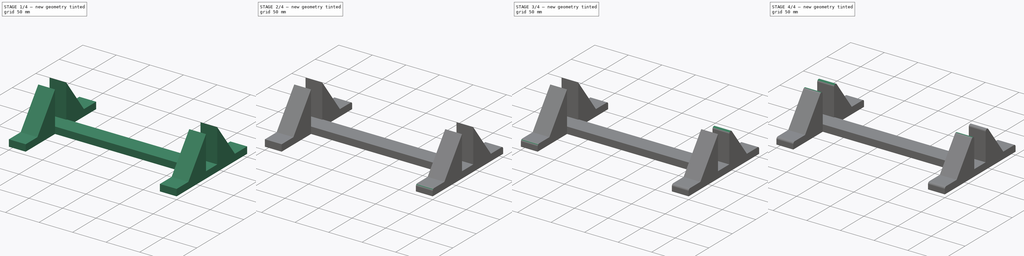
[diagram: build sequence overview — one tinted view per stage of 4, left to right]
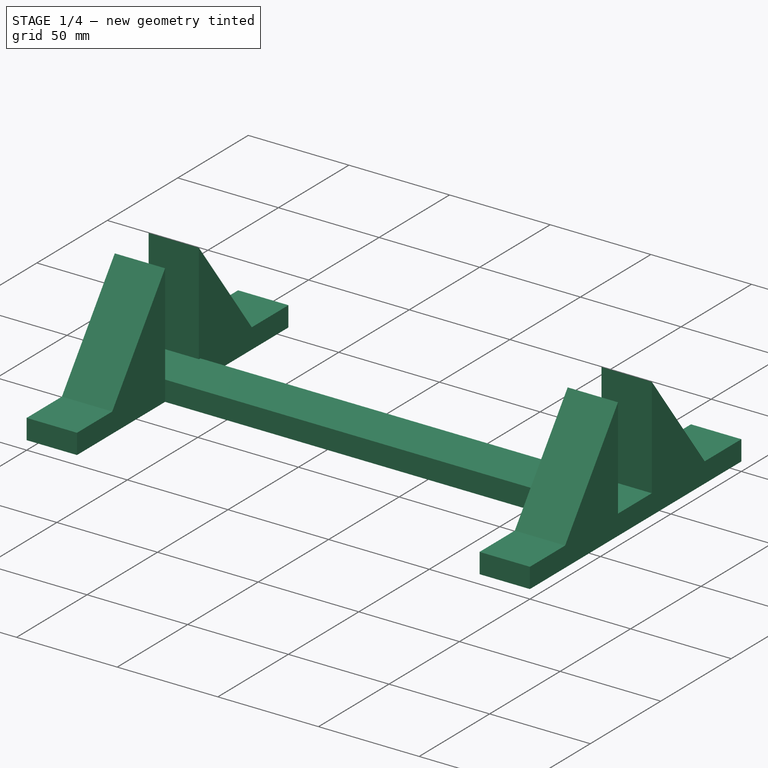
[diagram: stage 1 of 4 — iso view after this stage's code; geometry added in this stage tinted green]
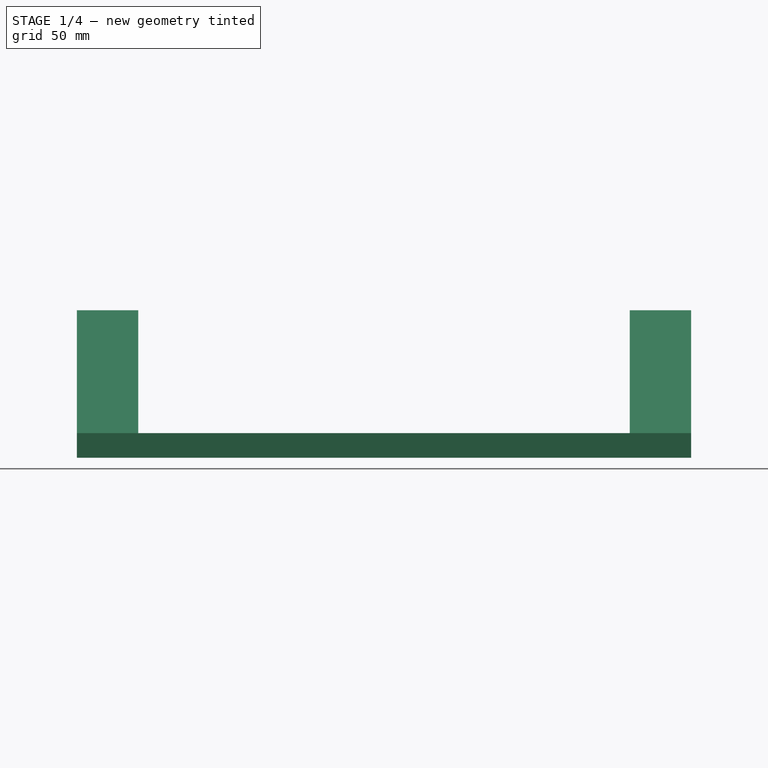
[diagram: stage 1 of 4 — front view after this stage's code; geometry added in this stage tinted green]
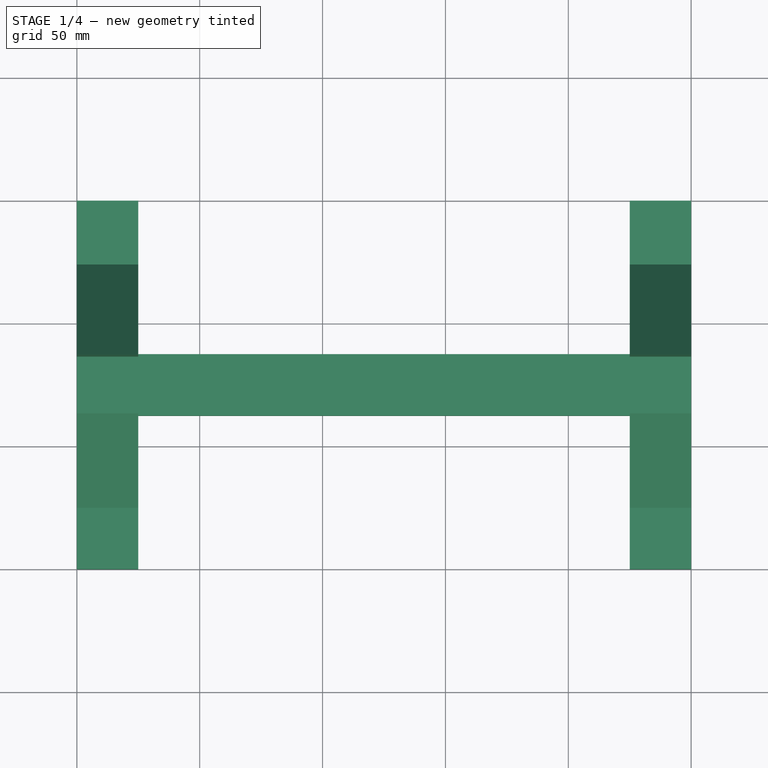
[diagram: stage 1 of 4 — top view after this stage's code; geometry added in this stage tinted green]
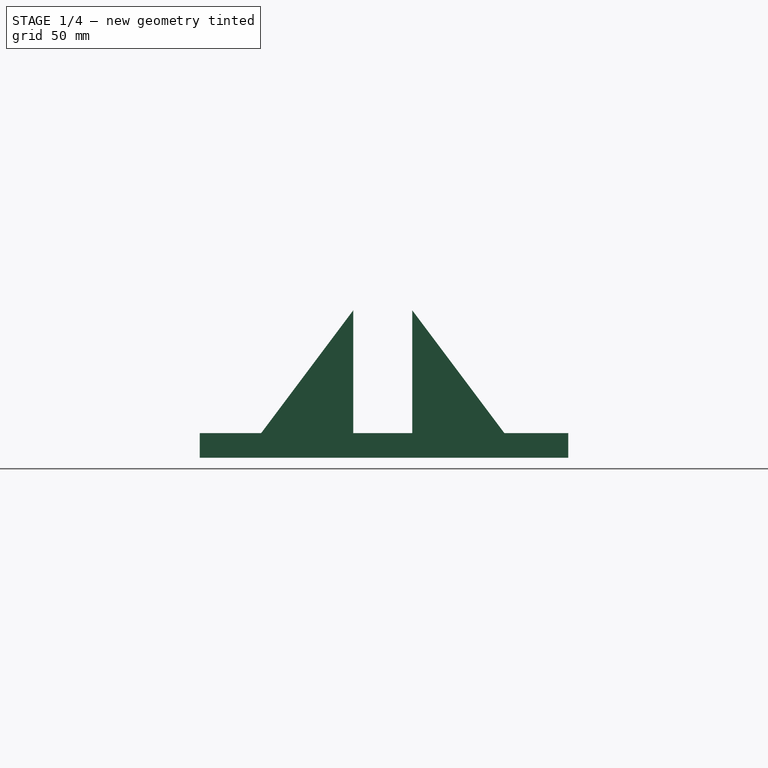
[diagram: stage 1 of 4 — right view after this stage's code; geometry added in this stage tinted green]
FCSTD DOCUMENT  (FreeCAD 0.17R11141 (Git))
Label: heat bed label jig
License: All rights reserved
LicenseURL: http://en.wikipedia.org/wiki/All_rights_reserved
objects: PartDesign::Fillet×8, Sketcher::SketchObject×3, PartDesign::Pad×3, PartDesign::Body×1
note: 18 computed .brp shape members not serialized (recipe doc carries the construction recipe); baked Part::Feature solids carry a one-line shape summary decoded from their .brp

FEATURE [Sketcher::SketchObject] Sketch
  MapMode = 5
  Support = -> [XY_Plane]
  sketch-geometry (12):
    g0: LineSegment StartX=0 StartY=0 StartZ=0 EndX=25 EndY=0 EndZ=0
    g1: LineSegment StartX=25 StartY=0 StartZ=0 EndX=25 EndY=62.5 EndZ=0
    g2: LineSegment StartX=25 StartY=62.5 StartZ=0 EndX=225 EndY=62.5 EndZ=0
    g3: LineSegment StartX=225 StartY=62.5 StartZ=0 EndX=225 EndY=0 EndZ=0
    g4: LineSegment StartX=225 StartY=0 StartZ=0 EndX=250 EndY=0 EndZ=0
    g5: LineSegment StartX=250 StartY=0 StartZ=0 EndX=250 EndY=150 EndZ=0
    g6: LineSegment StartX=250 StartY=150 StartZ=0 EndX=225 EndY=150 EndZ=0
    g7: LineSegment StartX=225 StartY=150 StartZ=0 EndX=225 EndY=87.5 EndZ=0
    g8: LineSegment StartX=225 StartY=87.5 StartZ=0 EndX=25 EndY=87.5 EndZ=0
    g9: LineSegment StartX=25 StartY=87.5 StartZ=0 EndX=25 EndY=150 EndZ=0
    g10: LineSegment StartX=25 StartY=150 StartZ=0 EndX=0 EndY=150 EndZ=0
    g11: LineSegment StartX=0 StartY=150 StartZ=0 EndX=0 EndY=0 EndZ=0
  constraints (35):
    c: PointOnObject(g0,g-2)
    c: Horizontal(g0)
    c: Coincident(g0,g1)
    c: Vertical(g1)
    c: Coincident(g1,g2)
    c: Horizontal(g2)
    c: Coincident(g2,g3)
    c: Vertical(g3)
    c: Coincident(g3,g4)
    c: PointOnObject(g4,g-1)
    c: Horizontal(g4)
    c: Coincident(g4,g5)
    c: Vertical(g5)
    c: Coincident(g5,g6)
    c: Horizontal(g6)
    c: Coincident(g6,g7)
    c: Vertical(g7)
    c: Coincident(g7,g8)
    c: Horizontal(g8)
    c: Coincident(g8,g9)
    c: Vertical(g9)
    c: Coincident(g9,g10)
    c: PointOnObject(g10,g-2)
    c: Horizontal(g10)
    c: Coincident(g10,g11)
    c: Coincident(g11,g-1)
    c: DistanceX(g8,g8) = 200
    c: Equal(g8,g2)
    c: DistanceY(g11,g11) = 150
    c: DistanceY(g5,g5) = 150
    c: DistanceX(g0,g0) = 25
    c: DistanceX(g10,g10) = 25
    c: DistanceX(g6,g6) = 25
    c: DistanceY(g9,g9) = 62.5
    c: DistanceY(g1,g8) = 25
FEATURE [PartDesign::Pad] Pad
  Length = 10
  Length2 = 100
  Profile = -> Sketch
  Type = 0
FEATURE [Sketcher::SketchObject] Sketch001
  ExternalGeometry = -> [Pad]
  MapMode = 5
  Placement = pos=(0,0,0) rot=(0.57735,0.57735,0.57735;2.0944rad)
  Support = -> [YZ_Plane]
  sketch-geometry (6):
    g0: LineSegment StartX=17.5 StartY=0 StartZ=0 EndX=62.5 EndY=60 EndZ=0
    g1: LineSegment StartX=62.5 StartY=60 StartZ=0 EndX=62.5 EndY=0 EndZ=0
    g2: LineSegment StartX=62.5 StartY=0 StartZ=0 EndX=17.5 EndY=0 EndZ=0
    g3: LineSegment StartX=86.5 StartY=0 StartZ=0 EndX=86.5 EndY=60 EndZ=0
    g4: LineSegment StartX=86.5 StartY=60 StartZ=0 EndX=131.5 EndY=0 EndZ=0
    g5: LineSegment StartX=131.5 StartY=0 StartZ=0 EndX=86.5 EndY=0 EndZ=0
  constraints (20):
    c: Coincident(g0,g1)
    c: Vertical(g1)
    c: Coincident(g1,g2)
    c: Coincident(g2,g0)
    c: Horizontal(g2)
    c: Vertical(g3)
    c: Coincident(g3,g4)
    c: Coincident(g4,g5)
    c: Coincident(g5,g3)
    c: Horizontal(g5)
    c: DistanceY(g3,g3) = 60
    c: DistanceY(g1,g1) = 60
    c: DistanceX(g0,g3) = 24
    c: DistanceX(g-1,g1) = 62.5
    c: Equal(g0,g4)
    c: DistanceX(g5,g5) = 45
    c: Equal(g5,g2)
    c: Distance(g0) = 75
    c: PointOnObject(g4,g-1)
    c: PointOnObject(g1,g-1)
FEATURE [PartDesign::Pad] Pad001
  BaseFeature = -> Pad
  Length = 25
  Length2 = 100
  Profile = -> Sketch001
  Type = 0
FEATURE [Sketcher::SketchObject] Sketch002
  MapMode = 5
  Placement = pos=(250,0,0) rot=(0.57735,0.57735,0.57735;2.0944rad)
  Support = -> [Pad001]
  sketch-geometry (6):
    g0: LineSegment StartX=17.5 StartY=0 StartZ=0 EndX=62.5 EndY=60 EndZ=0
    g1: LineSegment StartX=62.5 StartY=60 StartZ=0 EndX=62.5 EndY=0 EndZ=0
    g2: LineSegment StartX=62.5 StartY=0 StartZ=0 EndX=17.5 EndY=0 EndZ=0
    g3: LineSegment StartX=86.5 StartY=60 StartZ=0 EndX=86.5 EndY=0 EndZ=0
    g4: LineSegment StartX=86.5 StartY=0 StartZ=0 EndX=131.5 EndY=0 EndZ=0
    g5: LineSegment StartX=131.5 StartY=0 StartZ=0 EndX=86.5 EndY=60 EndZ=0
  constraints (19):
    c: PointOnObject(g0,g-1)
    c: Coincident(g0,g1)
    c: Vertical(g1)
    c: Coincident(g1,g2)
    c: Horizontal(g2)
    c: PointOnObject(g3,g-1)
    c: Vertical(g3)
    c: Coincident(g3,g4)
    c: PointOnObject(g4,g-1)
    c: Coincident(g4,g5)
    c: Coincident(g5,g3)
    c: DistanceX(g2,g2) = 45
    c: DistanceX(g4,g4) = 45
    c: DistanceY(g1,g1) = 60
    c: DistanceY(g3,g3) = 60
    c: Distance(g0) = 75
    c: DistanceX(g-1,g1) = 62.5
    c: DistanceX(g0,g3) = 24
    c: PointOnObject(g2,g-1)
FEATURE [PartDesign::Pad] Pad002
  BaseFeature = -> Pad001
  Length = 25
  Length2 = 100
  Profile = -> Sketch002
  Reversed = true
  Type = 0
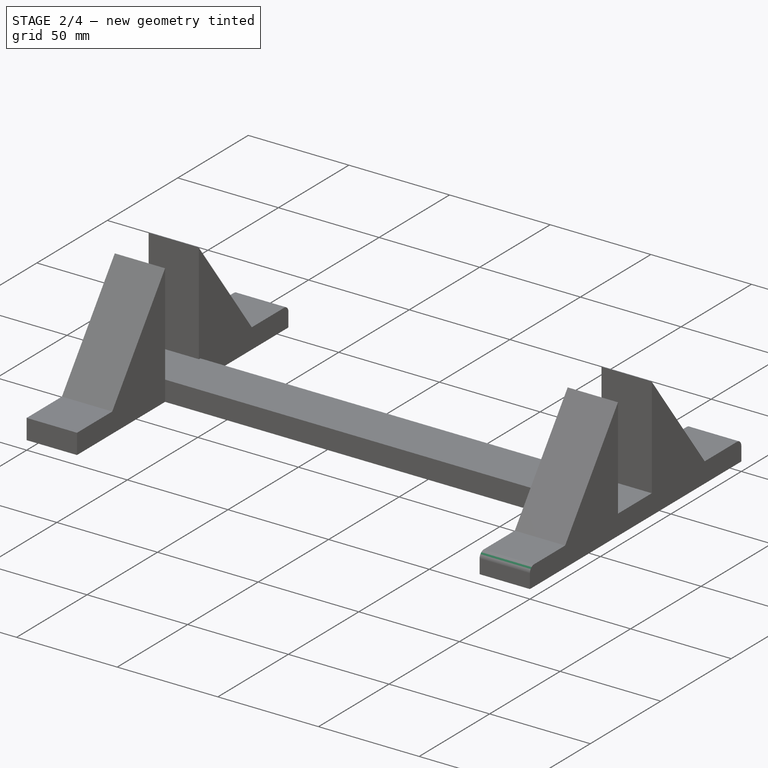
[diagram: stage 2 of 4 — iso view after this stage's code; geometry added in this stage tinted green]
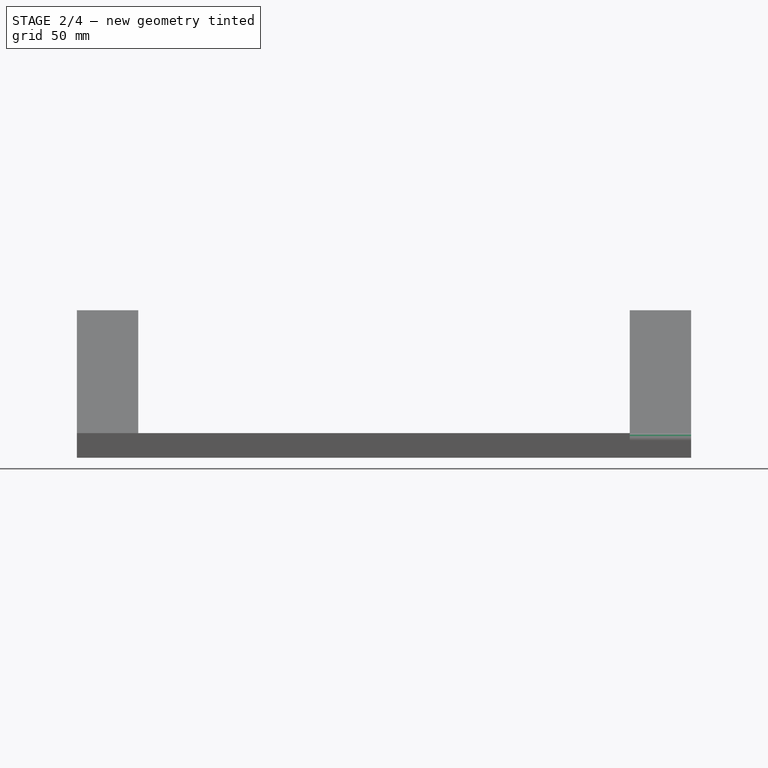
[diagram: stage 2 of 4 — front view after this stage's code; geometry added in this stage tinted green]
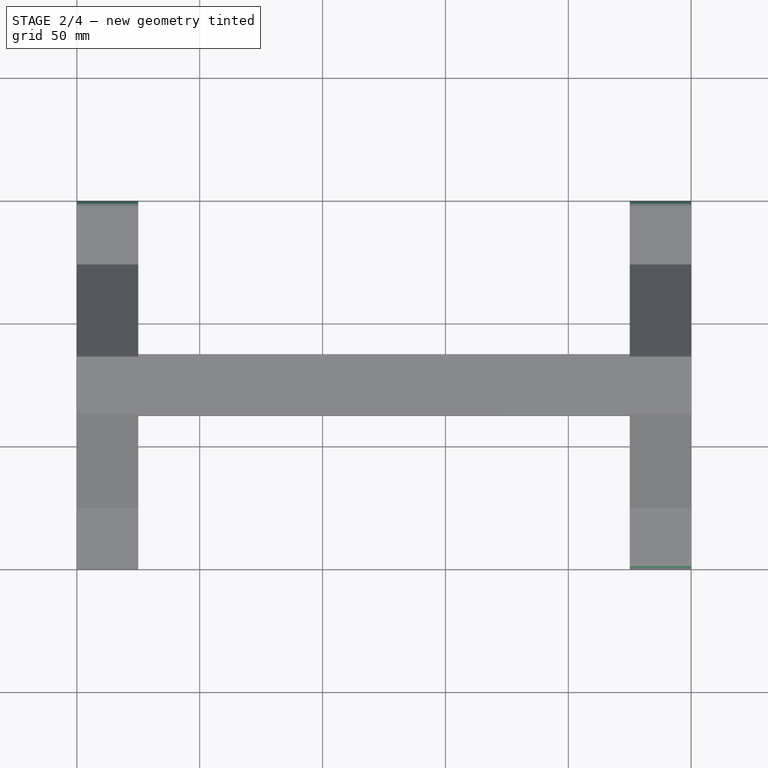
[diagram: stage 2 of 4 — top view after this stage's code; geometry added in this stage tinted green]
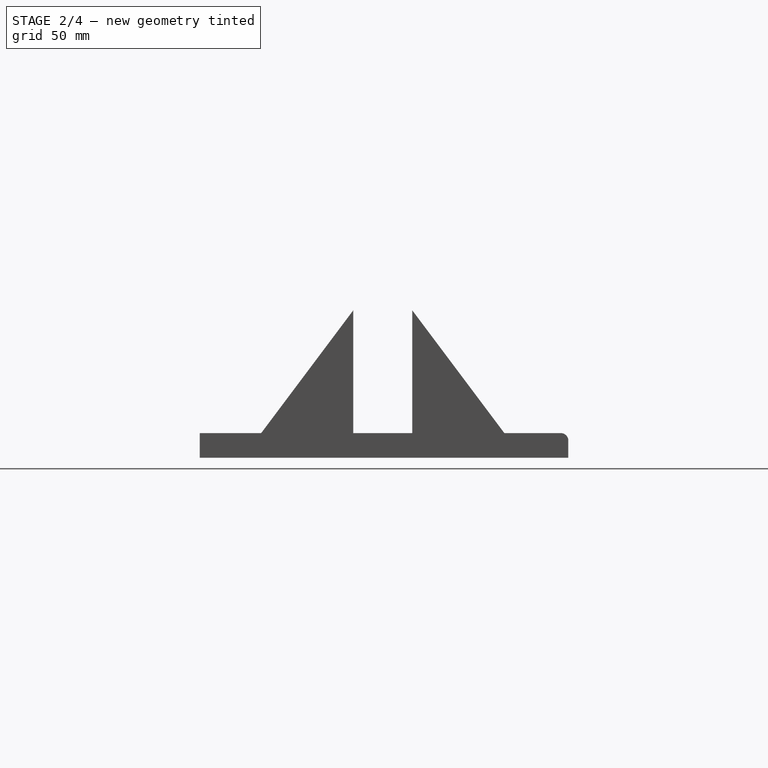
[diagram: stage 2 of 4 — right view after this stage's code; geometry added in this stage tinted green]
FEATURE [PartDesign::Fillet] Fillet
  Base = -> Pad002 [Edge112]
  BaseFeature = -> Pad002
  Radius = 3
FEATURE [PartDesign::Fillet] Fillet001
  Base = -> Fillet [Edge104]
  BaseFeature = -> Fillet
  Radius = 3
FEATURE [PartDesign::Fillet] Fillet002
  Base = -> Fillet001 [Edge115]
  BaseFeature = -> Fillet001
  Radius = 3
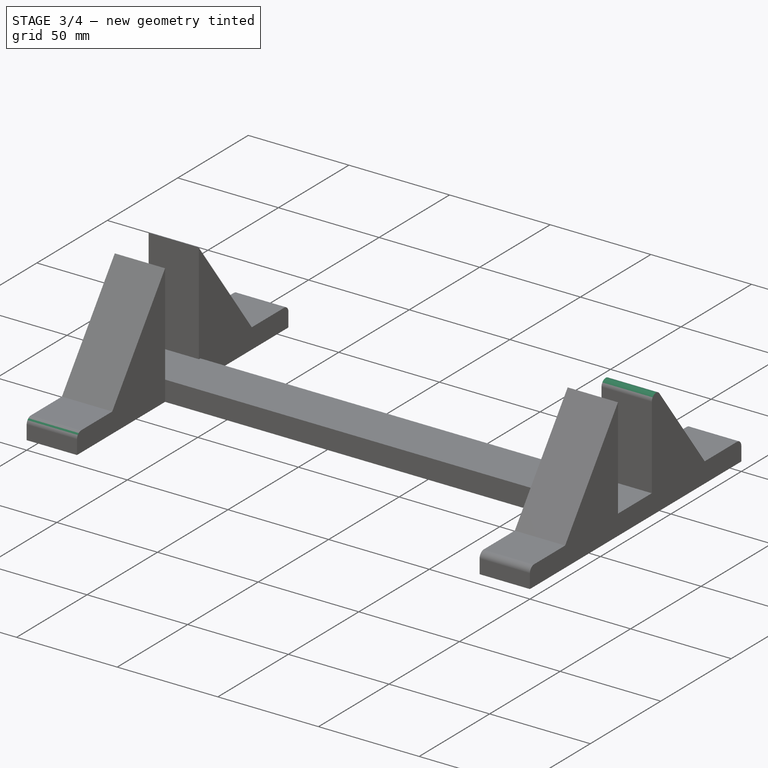
[diagram: stage 3 of 4 — iso view after this stage's code; geometry added in this stage tinted green]
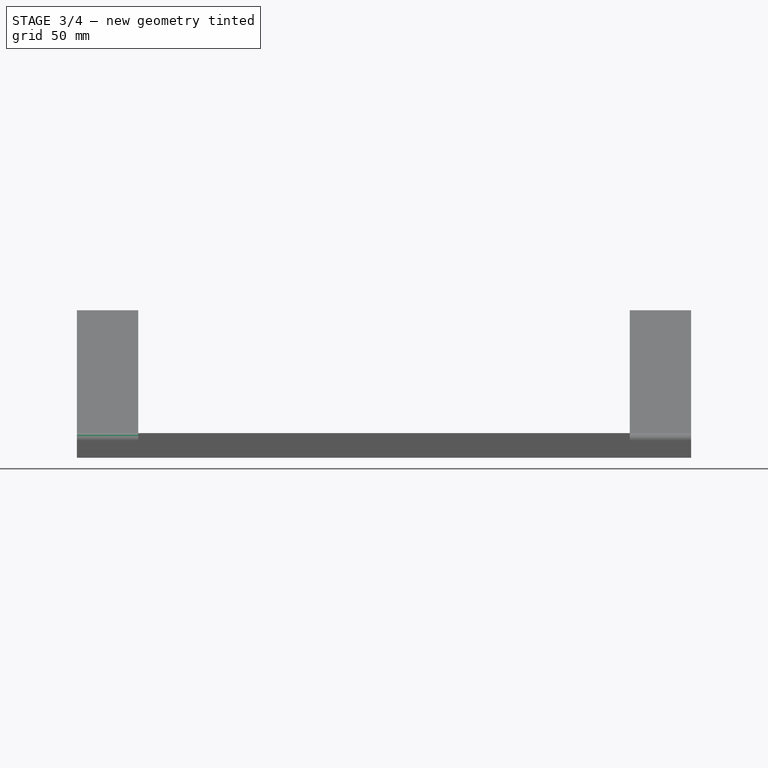
[diagram: stage 3 of 4 — front view after this stage's code; geometry added in this stage tinted green]
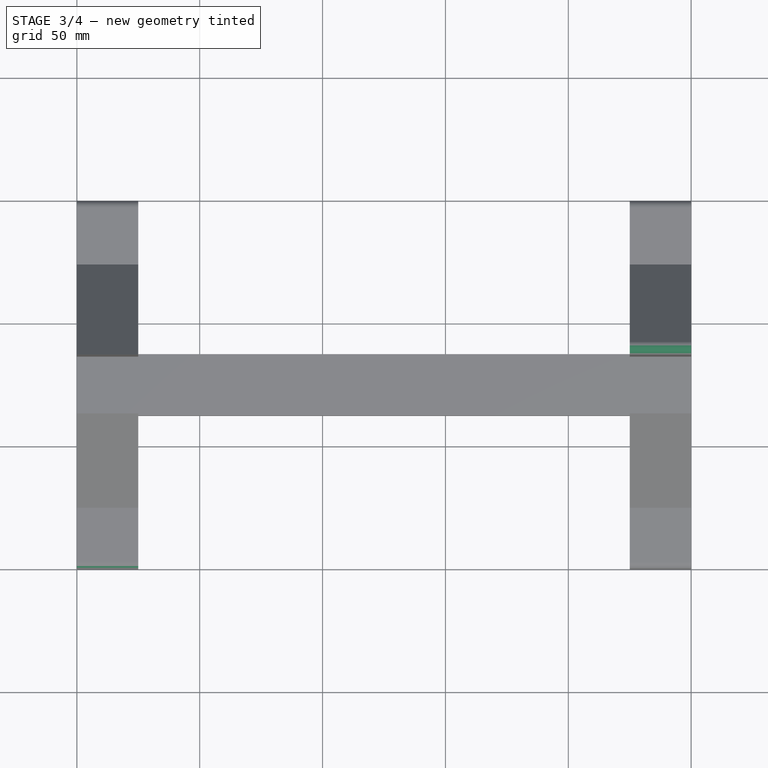
[diagram: stage 3 of 4 — top view after this stage's code; geometry added in this stage tinted green]
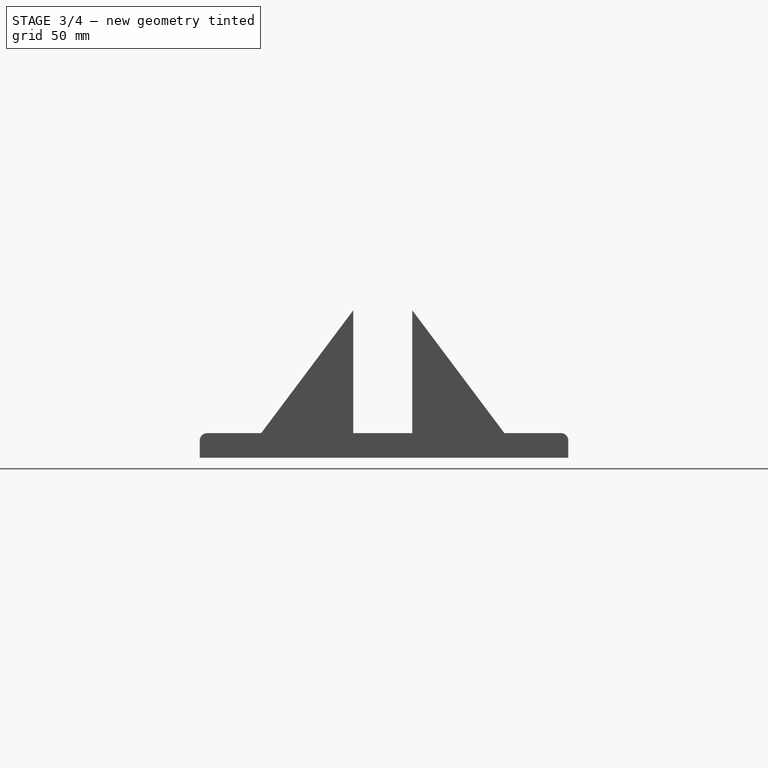
[diagram: stage 3 of 4 — right view after this stage's code; geometry added in this stage tinted green]
FEATURE [PartDesign::Fillet] Fillet003
  Base = -> Fillet002 [Edge120]
  BaseFeature = -> Fillet002
  Radius = 3
FEATURE [PartDesign::Fillet] Fillet004
  Base = -> Fillet003 [Edge73]
  BaseFeature = -> Fillet003
  Radius = 3
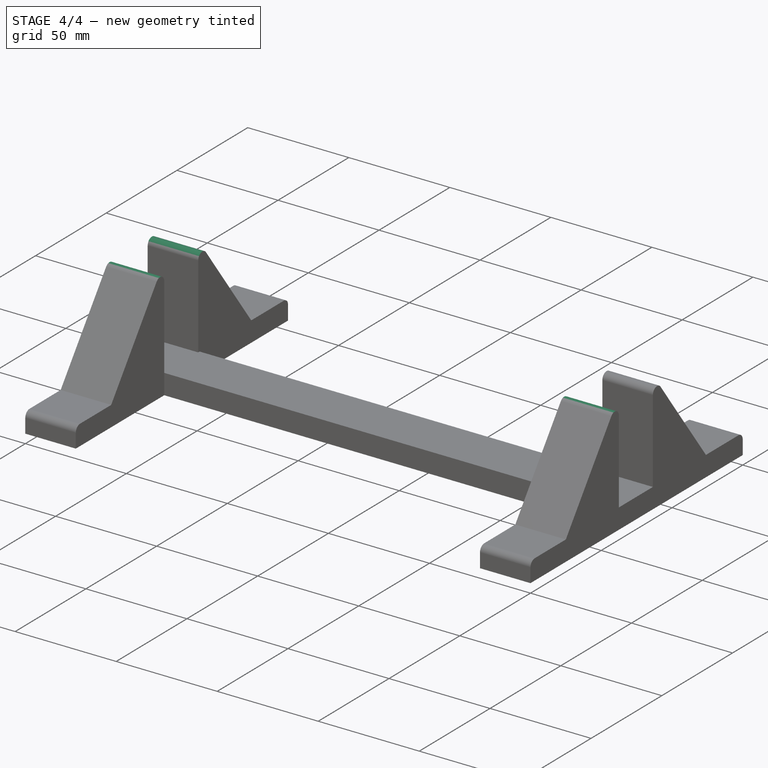
[diagram: stage 4 of 4 — iso view after this stage's code; geometry added in this stage tinted green]
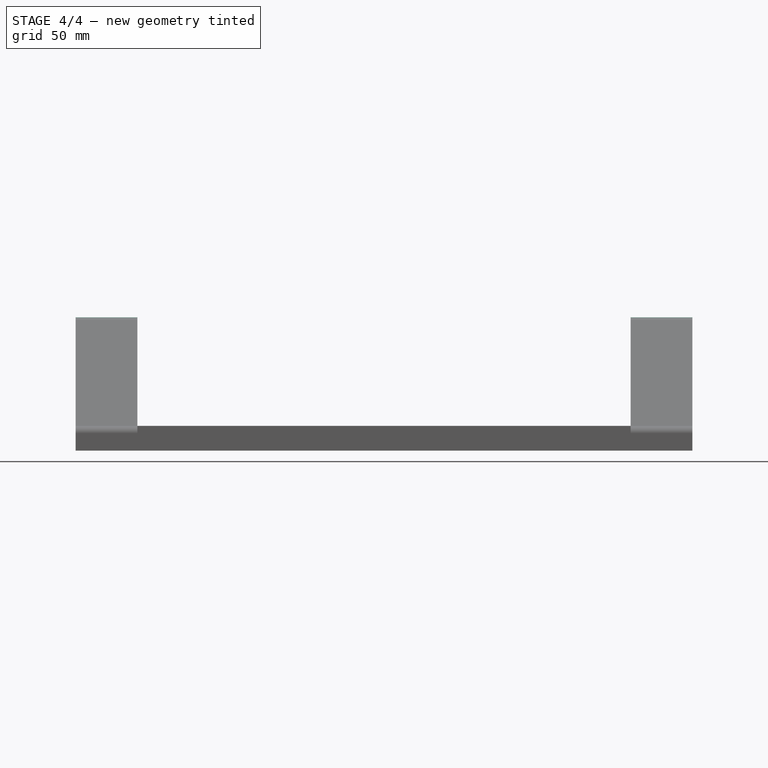
[diagram: stage 4 of 4 — front view after this stage's code; geometry added in this stage tinted green]
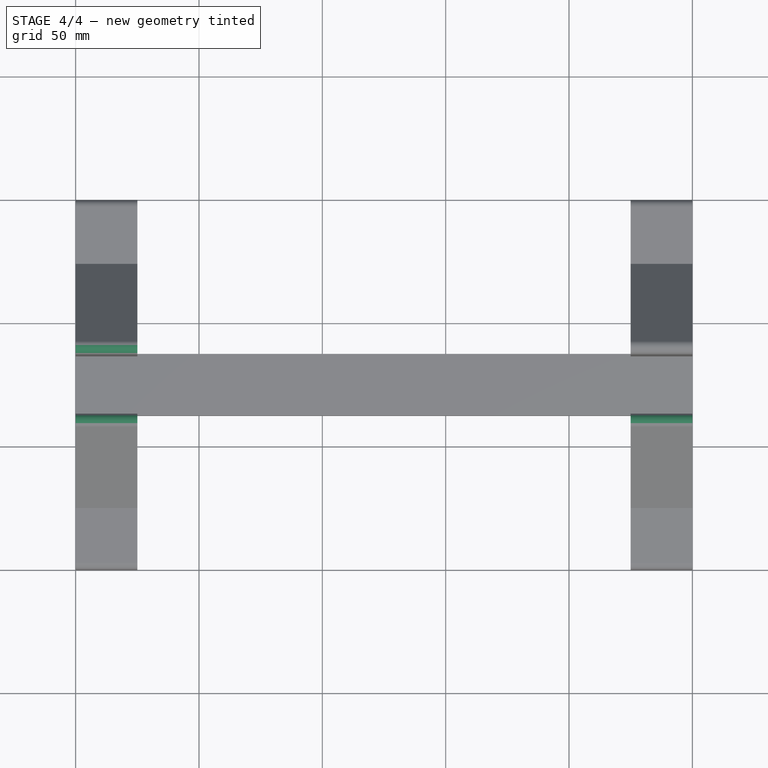
[diagram: stage 4 of 4 — top view after this stage's code; geometry added in this stage tinted green]
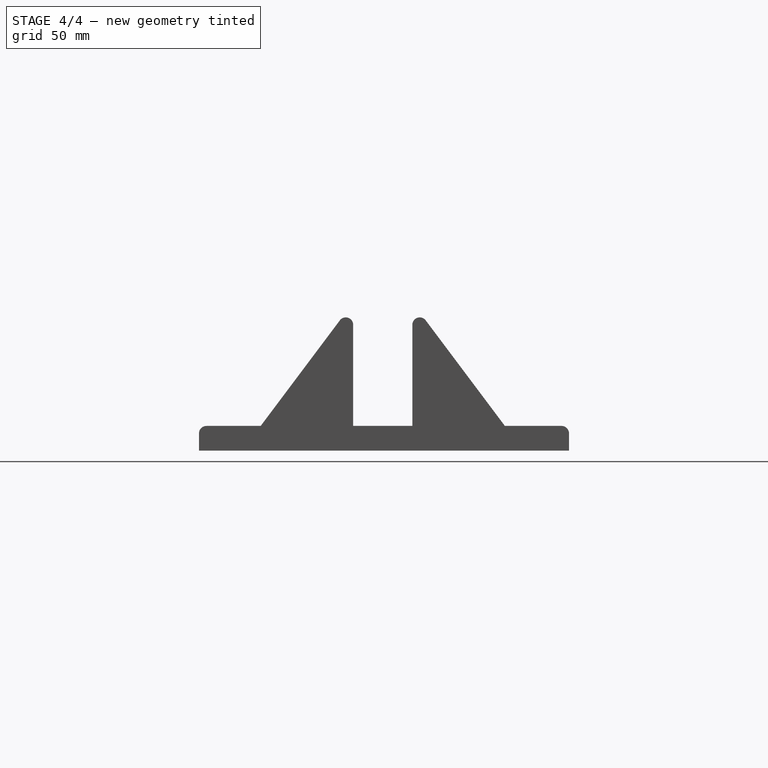
[diagram: stage 4 of 4 — right view after this stage's code; geometry added in this stage tinted green]
FEATURE [PartDesign::Fillet] Fillet005
  Base = -> Fillet004 [Edge47]
  BaseFeature = -> Fillet004
  Radius = 3
FEATURE [PartDesign::Fillet] Fillet006
  Base = -> Fillet005 [Edge26]
  BaseFeature = -> Fillet005
  Radius = 3
FEATURE [PartDesign::Fillet] Fillet007
  Base = -> Fillet006 [Edge45]
  BaseFeature = -> Fillet006
  Radius = 3
FEATURE [PartDesign::Body] Body
  Group = -> [Sketch,Pad,Sketch001,Pad001,Sketch002,Pad002,Fillet,Fillet001,Fillet002,Fillet003,Fillet004,Fillet005,Fillet006,Fillet007]
  Origin = -> BodyOrigin
  Tip = -> Fillet007
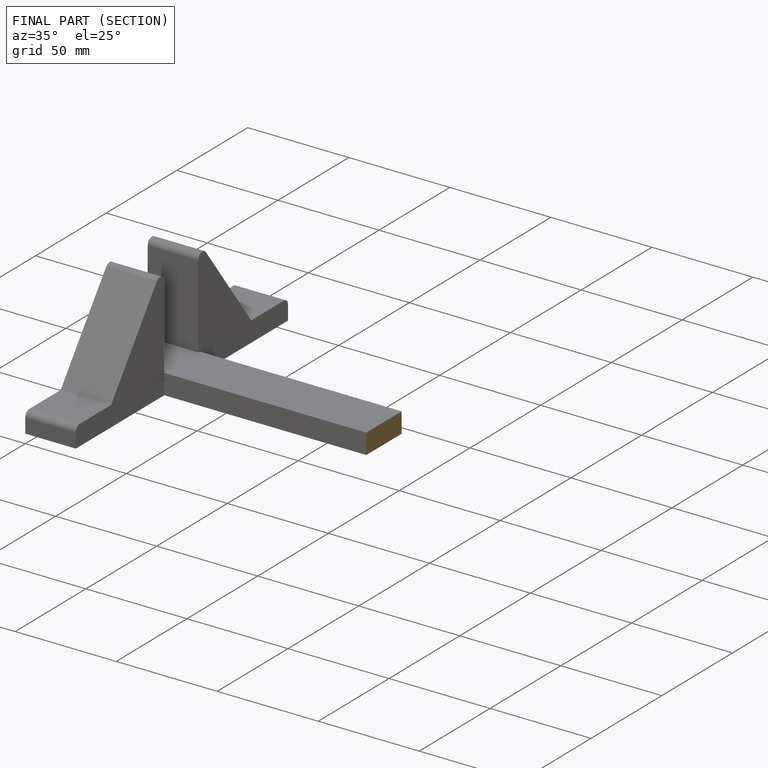
[diagram: finished part — half-section view (interior)]
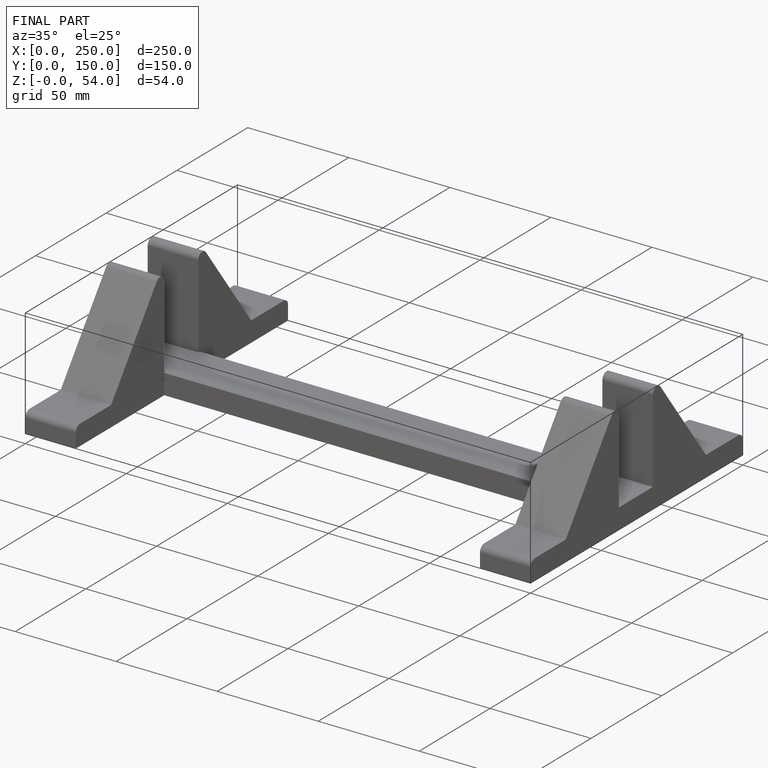
[diagram: finished part — iso view with bounding-box wireframe]
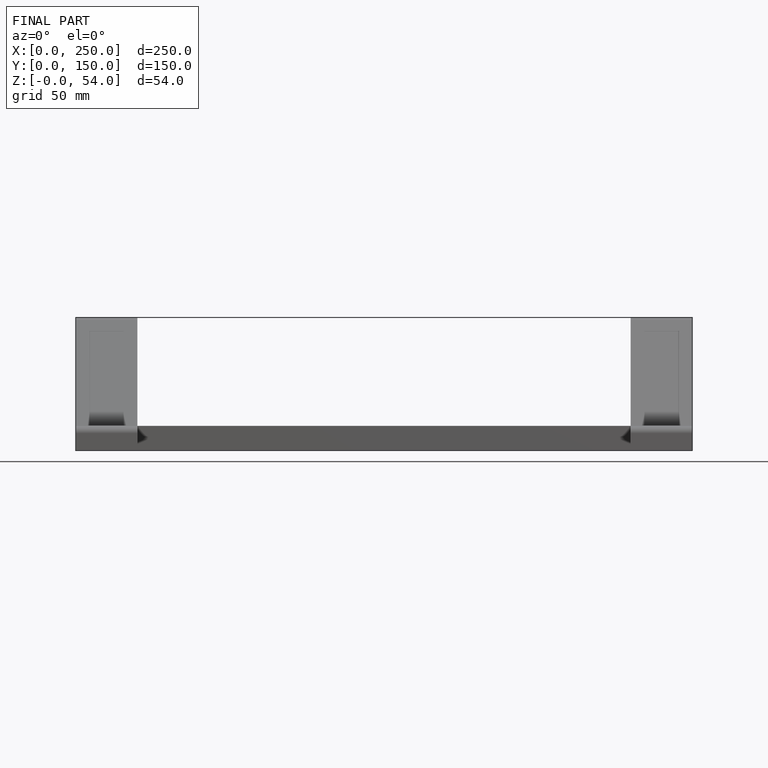
[diagram: finished part — front view with bounding-box wireframe]
